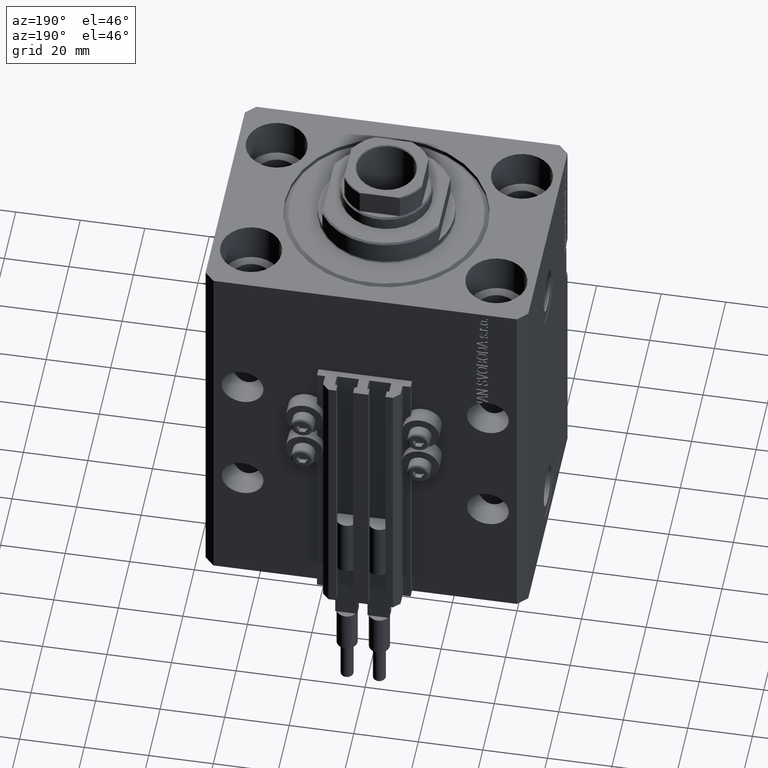
[diagram: clean part render]
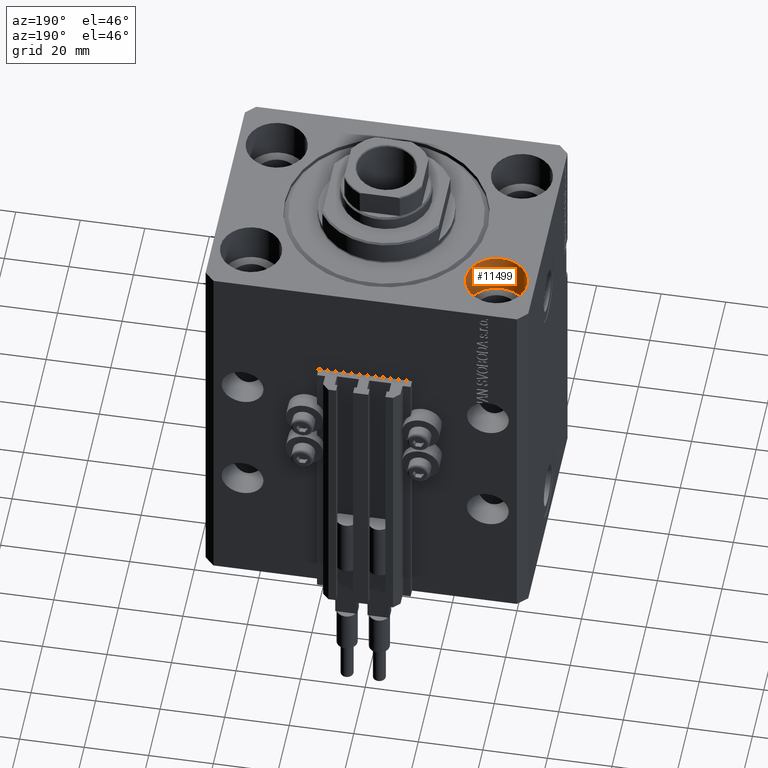
[diagram: same view with one face highlighted and labeled with its STEP entity id]
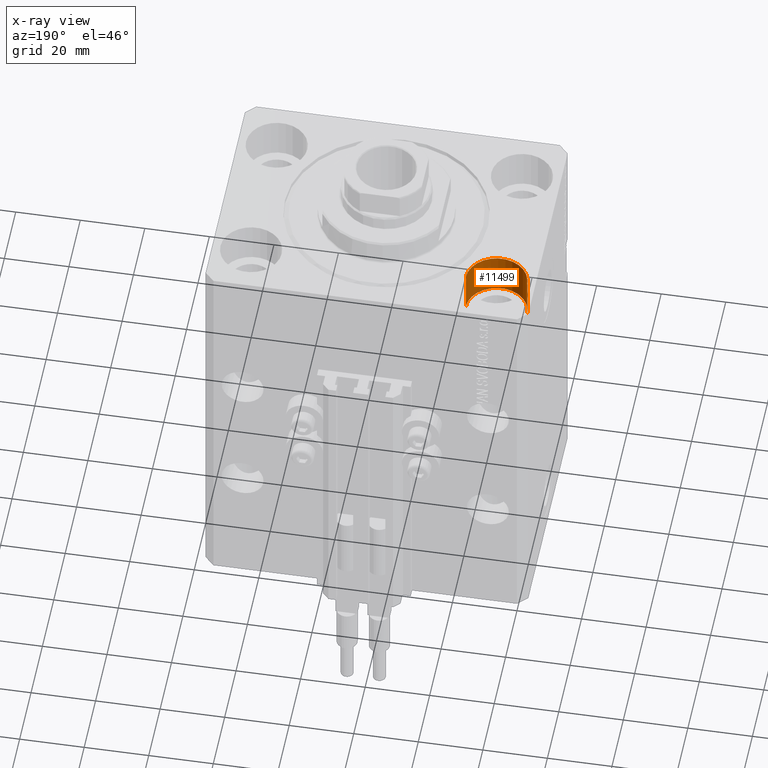
[diagram: x-ray of the same camera — body ghosted, the highlighted face saturated]
A machine part, auxiliary view. The second image highlights one B-rep face of the part: STEP entity #11499.
The next image is the same camera in x-ray: the body ghosted, the highlighted face saturated — about 0% of this face is hidden behind the body in this view.
In plain terms, the highlighted cylindrical surface (edge-blend (fillet) strip) has radius 9.5 mm, axis along (0, 0, 1).
Its self-contained STEP definition (entity closure, byte-faithful):
#6617 = DIRECTION ( 'NONE',  ( 0.000000000000000000, 0.000000000000000000, 1.000000000000000000 ) ) ;
#6858 = DIRECTION ( 'NONE',  ( 1.000000000000000000, 0.000000000000000000, 0.000000000000000000 ) ) ;
#8886 = VERTEX_POINT ( 'NONE', #13260 ) ;
#9465 = EDGE_CURVE ( 'NONE', #15430, #8886, #37628, .T. ) ;
#10038 = CARTESIAN_POINT ( 'NONE',  ( -28.50000000000000355, 22.50000000000000000, -13.00000000000000000 ) ) ;
#11499 = ADVANCED_FACE ( 'NONE', ( #48984 ), #37603, .F. ) ;
#13260 = CARTESIAN_POINT ( 'NONE',  ( -28.50000000000000355, 22.50000000000000000, 0.000000000000000000 ) ) ;
#15430 = VERTEX_POINT ( 'NONE', #29012 ) ;
#16033 = DIRECTION ( 'NONE',  ( -0.000000000000000000, -0.000000000000000000, 1.000000000000000000 ) ) ;
#16395 = LINE ( 'NONE', #20617, #21942 ) ;
#17105 = ORIENTED_EDGE ( 'NONE', *, *, #34212, .F. ) ;
#18736 = CARTESIAN_POINT ( 'NONE',  ( -38.00000000000000711, 22.50000000000000000, -13.00000000000000000 ) ) ;
#20617 = CARTESIAN_POINT ( 'NONE',  ( -28.50000000000000355, 22.50000000000000000, -13.00000000000000000 ) ) ;
#21675 = VERTEX_POINT ( 'NONE', #10038 ) ;
#21942 = VECTOR ( 'NONE', #46610, 1000.000000000000000 ) ;
#23076 = EDGE_CURVE ( 'NONE', #32989, #15430, #32873, .T. ) ;
#23588 = AXIS2_PLACEMENT_3D ( 'NONE', #45999, #16033, #38583 ) ;
#25028 = CIRCLE ( 'NONE', #44880, 9.500000000000001776 ) ;
#26231 = ORIENTED_EDGE ( 'NONE', *, *, #23076, .T. ) ;
#28920 = DIRECTION ( 'NONE',  ( -0.000000000000000000, -0.000000000000000000, 1.000000000000000000 ) ) ;
#29012 = CARTESIAN_POINT ( 'NONE',  ( -47.50000000000000711, 22.50000000000000000, 0.000000000000000000 ) ) ;
#29639 = DIRECTION ( 'NONE',  ( 1.000000000000000000, 0.000000000000000000, 0.000000000000000000 ) ) ;
#29881 = DIRECTION ( 'NONE',  ( 0.000000000000000000, 0.000000000000000000, 1.000000000000000000 ) ) ;
#31009 = EDGE_CURVE ( 'NONE', #32989, #21675, #25028, .T. ) ;
#31171 = VECTOR ( 'NONE', #28920, 1000.000000000000000 ) ;
#32873 = LINE ( 'NONE', #36351, #31171 ) ;
#32989 = VERTEX_POINT ( 'NONE', #48716 ) ;
#34212 = EDGE_CURVE ( 'NONE', #21675, #8886, #16395, .T. ) ;
#36351 = CARTESIAN_POINT ( 'NONE',  ( -47.50000000000000711, 22.50000000000000000, -13.00000000000000000 ) ) ;
#37098 = CARTESIAN_POINT ( 'NONE',  ( -38.00000000000000711, 22.50000000000000000, 0.000000000000000000 ) ) ;
#37603 = CYLINDRICAL_SURFACE ( 'NONE', #23588, 9.500000000000001776 ) ;
#37628 = CIRCLE ( 'NONE', #47150, 9.500000000000001776 ) ;
#38583 = DIRECTION ( 'NONE',  ( 1.000000000000000000, 0.000000000000000000, 0.000000000000000000 ) ) ;
#42824 = ORIENTED_EDGE ( 'NONE', *, *, #31009, .F. ) ;
#44880 = AXIS2_PLACEMENT_3D ( 'NONE', #18736, #29881, #29639 ) ;
#45240 = EDGE_LOOP ( 'NONE', ( #42824, #26231, #46255, #17105 ) ) ;
#45999 = CARTESIAN_POINT ( 'NONE',  ( -38.00000000000000711, 22.50000000000000000, -13.00000000000000000 ) ) ;
#46255 = ORIENTED_EDGE ( 'NONE', *, *, #9465, .T. ) ;
#46610 = DIRECTION ( 'NONE',  ( -0.000000000000000000, -0.000000000000000000, 1.000000000000000000 ) ) ;
#47150 = AXIS2_PLACEMENT_3D ( 'NONE', #37098, #6617, #6858 ) ;
#48716 = CARTESIAN_POINT ( 'NONE',  ( -47.50000000000000711, 22.50000000000000000, -13.00000000000000000 ) ) ;
#48984 = FACE_OUTER_BOUND ( 'NONE', #45240, .T. ) ;